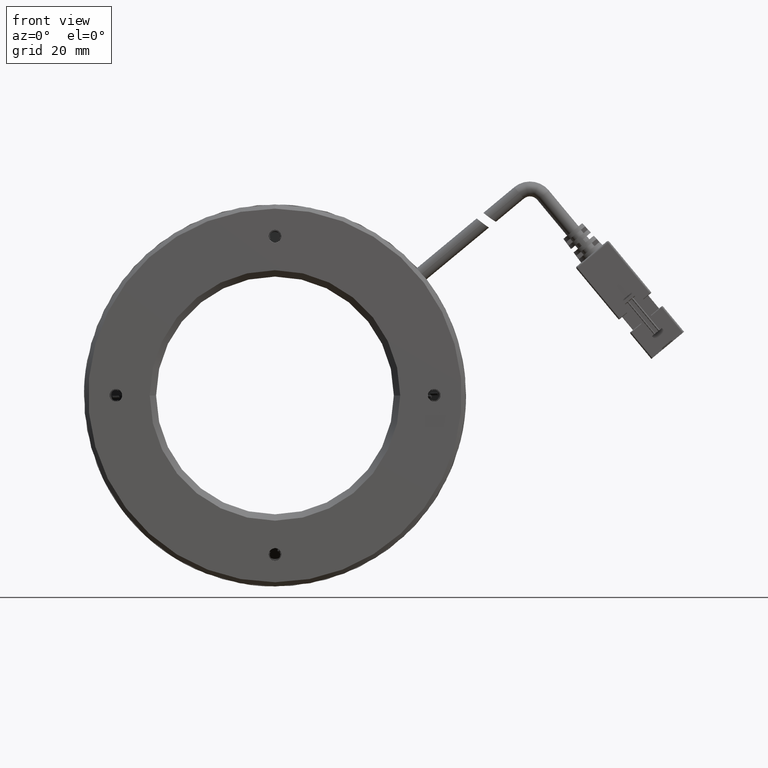
[diagram: clean part render]
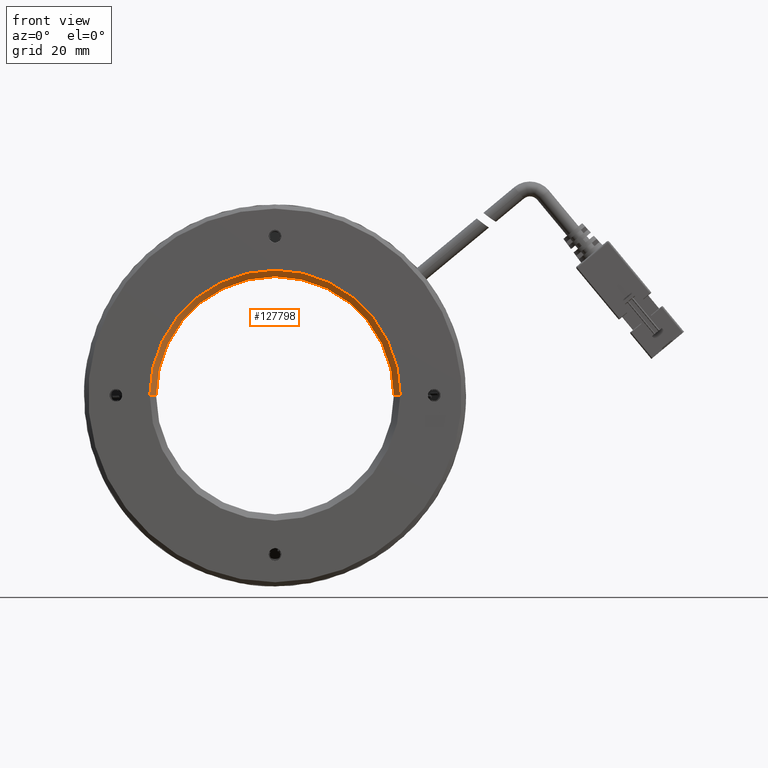
[diagram: same view with one face highlighted and labeled with its STEP entity id]
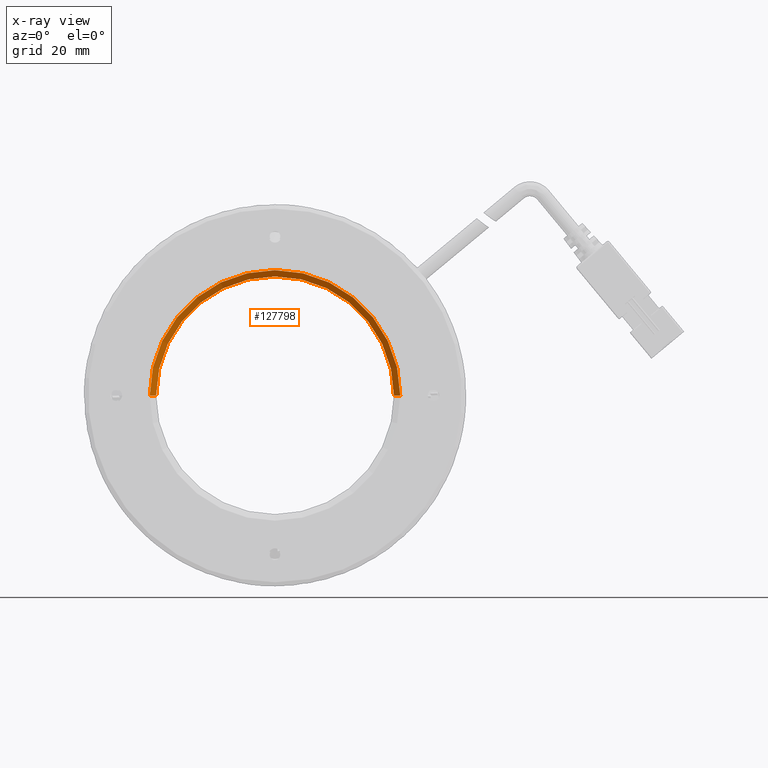
[diagram: x-ray of the same camera — body ghosted, the highlighted face saturated]
A machine part, front view. The second image highlights one B-rep face of the part: STEP entity #127798.
The next image is the same camera in x-ray: the body ghosted, the highlighted face saturated — about 0% of this face is hidden behind the body in this view.
In plain terms, the highlighted conical surface has half-angle 45 deg.
Its self-contained STEP definition (entity closure, byte-faithful):
#1013 = CARTESIAN_POINT ( 'NONE',  ( -53.99004085520083900, 17.97876601230219500, -3.797922368083179700 ) ) ;
#2326 = VERTEX_POINT ( 'NONE', #57694 ) ;
#2753 = EDGE_LOOP ( 'NONE', ( #129879, #109443, #49782, #27674, #22796 ) ) ;
#8555 = VECTOR ( 'NONE', #44037, 1000.000000000000000 ) ;
#9973 = AXIS2_PLACEMENT_3D ( 'NONE', #86288, #23999, #96804 ) ;
#10457 = EDGE_CURVE ( 'NONE', #80962, #89632, #79809, .T. ) ;
#11515 = DIRECTION ( 'NONE',  ( 0.0000000000000000000, 0.0000000000000000000, 1.000000000000000000 ) ) ;
#11884 = DIRECTION ( 'NONE',  ( 0.7071067811865491300, -0.7071067811865459100, -1.258479170906440000E-016 ) ) ;
#22796 = ORIENTED_EDGE ( 'NONE', *, *, #10457, .F. ) ;
#23999 = DIRECTION ( 'NONE',  ( -3.487088207641512300E-017, -1.000000000000000000, 1.935722808511237900E-033 ) ) ;
#26271 = CIRCLE ( 'NONE', #42615, 28.00000000000000400 ) ;
#27674 = ORIENTED_EDGE ( 'NONE', *, *, #87157, .F. ) ;
#30042 = AXIS2_PLACEMENT_3D ( 'NONE', #103626, #41253, #114129 ) ;
#32889 = CARTESIAN_POINT ( 'NONE',  ( -24.49004085520084200, 16.47876601230220600, -3.797922368083185100 ) ) ;
#33004 = LINE ( 'NONE', #32889, #109509 ) ;
#36295 = LINE ( 'NONE', #85410, #8555 ) ;
#36576 = CARTESIAN_POINT ( 'NONE',  ( -81.99004085520084600, 17.97876601230219900, -3.797922368083178000 ) ) ;
#41253 = DIRECTION ( 'NONE',  ( -9.367506770274758300E-017, -1.000000000000000000, 5.200010849845536800E-033 ) ) ;
#42615 = AXIS2_PLACEMENT_3D ( 'NONE', #1013, #73866, #11515 ) ;
#44037 = DIRECTION ( 'NONE',  ( -0.7071067811865491300, -0.7071067811865459100, 3.925231146709446500E-017 ) ) ;
#45285 = AXIS2_PLACEMENT_3D ( 'NONE', #77224, #129106, #67269 ) ;
#47709 = FACE_OUTER_BOUND ( 'NONE', #2753, .T. ) ;
#49782 = ORIENTED_EDGE ( 'NONE', *, *, #130204, .T. ) ;
#57694 = CARTESIAN_POINT ( 'NONE',  ( -24.49004085520084200, 16.47876601230220600, -3.797922368083185100 ) ) ;
#61821 = VERTEX_POINT ( 'NONE', #62056 ) ;
#62056 = CARTESIAN_POINT ( 'NONE',  ( -83.49004085520083200, 16.47876601230220600, -3.797922368083178000 ) ) ;
#67269 = DIRECTION ( 'NONE',  ( -1.000000000000000000, 0.0000000000000000000, 5.880418562633246000E-017 ) ) ;
#73866 = DIRECTION ( 'NONE',  ( -9.367506770274758300E-017, -1.000000000000000000, 5.200010849845536800E-033 ) ) ;
#77224 = CARTESIAN_POINT ( 'NONE',  ( -53.99004085520083900, 16.47876601230220600, -3.797922368083179700 ) ) ;
#79809 = CIRCLE ( 'NONE', #30042, 28.00000000000000400 ) ;
#80962 = VERTEX_POINT ( 'NONE', #111645 ) ;
#85410 = CARTESIAN_POINT ( 'NONE',  ( -83.49004085520083200, 16.47876601230220600, -3.797922368083178000 ) ) ;
#86288 = CARTESIAN_POINT ( 'NONE',  ( -53.99004085520083900, 16.47876601230220600, -3.797922368083179700 ) ) ;
#87157 = EDGE_CURVE ( 'NONE', #89632, #61821, #36295, .T. ) ;
#89632 = VERTEX_POINT ( 'NONE', #36576 ) ;
#89942 = CONICAL_SURFACE ( 'NONE', #45285, 29.49999999999999300, 0.7853981633974506100 ) ;
#96804 = DIRECTION ( 'NONE',  ( -1.000000000000000000, 0.0000000000000000000, 5.880418562633246000E-017 ) ) ;
#103626 = CARTESIAN_POINT ( 'NONE',  ( -53.99004085520083900, 17.97876601230219500, -3.797922368083179700 ) ) ;
#104144 = EDGE_CURVE ( 'NONE', #125485, #80962, #26271, .T. ) ;
#108030 = CARTESIAN_POINT ( 'NONE',  ( -25.99004085520083200, 17.97876601230219200, -3.797922368083185100 ) ) ;
#109443 = ORIENTED_EDGE ( 'NONE', *, *, #134385, .T. ) ;
#109509 = VECTOR ( 'NONE', #11884, 1000.000000000000000 ) ;
#111645 = CARTESIAN_POINT ( 'NONE',  ( -53.99004085520083900, 17.97876601230219500, 24.20207763191682200 ) ) ;
#114129 = DIRECTION ( 'NONE',  ( 0.0000000000000000000, 0.0000000000000000000, 1.000000000000000000 ) ) ;
#123844 = CIRCLE ( 'NONE', #9973, 29.49999999999999300 ) ;
#125485 = VERTEX_POINT ( 'NONE', #108030 ) ;
#127798 = ADVANCED_FACE ( 'NONE', ( #47709 ), #89942, .F. ) ;
#129106 = DIRECTION ( 'NONE',  ( -3.487088207641512300E-017, -1.000000000000000000, 1.935722808511237900E-033 ) ) ;
#129879 = ORIENTED_EDGE ( 'NONE', *, *, #104144, .F. ) ;
#130204 = EDGE_CURVE ( 'NONE', #2326, #61821, #123844, .T. ) ;
#134385 = EDGE_CURVE ( 'NONE', #125485, #2326, #33004, .T. ) ;